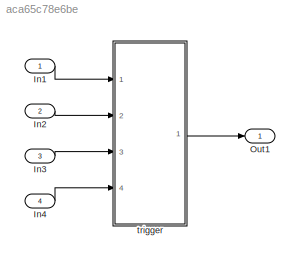
MODEL slx_aca65c78e6be
KIND model
CONFIG AbsTol = auto
CONFIG EnableMultiTasking = off
CONFIG FixedStep = auto
CONFIG MaxStep = auto
CONFIG MinStep = auto
CONFIG RelTol = 1e-3
CONFIG SampleTimeConstraint = Unconstrained
CONFIG Solver = FixedStepDiscrete
CONFIG SolverName = FixedStepDiscrete
CONFIG StartTime = 0.0
CONFIG StopTime = 10.0
BLOCK [Inport] In1
  IconDisplay = Port number
BLOCK [Inport] In2
  IconDisplay = Port number
  Port = 2
BLOCK [Inport] In3
  IconDisplay = Port number
  Port = 3
BLOCK [Inport] In4
  IconDisplay = Port number
  Port = 4
BLOCK [Outport] Out1
  IconDisplay = Port number
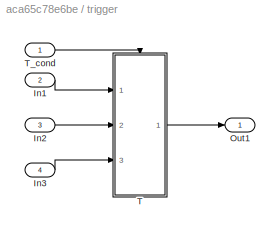
BLOCK [SubSystem] trigger
  AncestorBlock = Block_TestLib/trigger
  Ports = [4, 1]
  RequestExecContextInheritance = off
  Variant = off
BLOCK [Inport] trigger/In1
  IconDisplay = Port number
  Port = 2
BLOCK [Inport] trigger/In2
  IconDisplay = Port number
  Port = 3
BLOCK [Inport] trigger/In3
  IconDisplay = Port number
  Port = 4
BLOCK [Outport] trigger/Out1
  IconDisplay = Port number
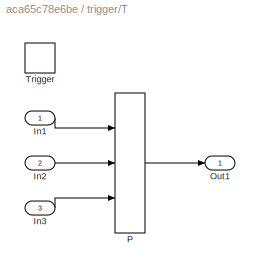
BLOCK [SubSystem] trigger/T
  Ports = [3, 1, 0, 1]
  RequestExecContextInheritance = off
  TreatAsAtomicUnit = on
  Variant = off
BLOCK [Inport] trigger/T/In1
  IconDisplay = Port number
  OutMax = 127
  OutMin = 0
  PortDimensions = 1
BLOCK [Inport] trigger/T/In2
  IconDisplay = Port number
  OutMax = 127
  OutMin = 0
  Port = 2
BLOCK [Inport] trigger/T/In3
  IconDisplay = Port number
  OutMax = 127
  OutMin = 0
  Port = 3
BLOCK [Outport] trigger/T/Out1
  IconDisplay = Port number
BLOCK [Lookup_n-D] trigger/T/P
  BreakpointsForDimension1FirstPoint = 80.9935
  BreakpointsForDimension1Spacing = 1.5
  BreakpointsForDimension2FirstPoint = 61.657
  BreakpointsForDimension2Spacing = 1.5
  BreakpointsForDimension3 = [5, 7]
  BreakpointsForDimension3FirstPoint = 13.0376
  BreakpointsForDimension3Spacing = 1.5
  BreakpointsSpecification = Even spacing
  InternalRulePriority = Speed
  InterpMethod = Nearest
  NumberOfTableDimensions = 3
  Ports = [3, 1]
  RndMeth = Simplest
  Table = reshape(repmat([4 5 6 7 8;16 19 20 21 22;10 18 23 24 25],1,2),[2,5,3])
  UseLastTableValue = on
BLOCK [TriggerPort] trigger/T/Trigger
  Ports = []
  StatesWhenEnabling = held
  VariantControl = Variant
BLOCK [Inport] trigger/T_cond
  IconDisplay = Port number
  OutDataTypeStr = boolean
LINE In1:1 -> trigger:1
LINE In2:1 -> trigger:2
LINE In3:1 -> trigger:3
LINE In4:1 -> trigger:4
LINE trigger:1 -> Out1:1
